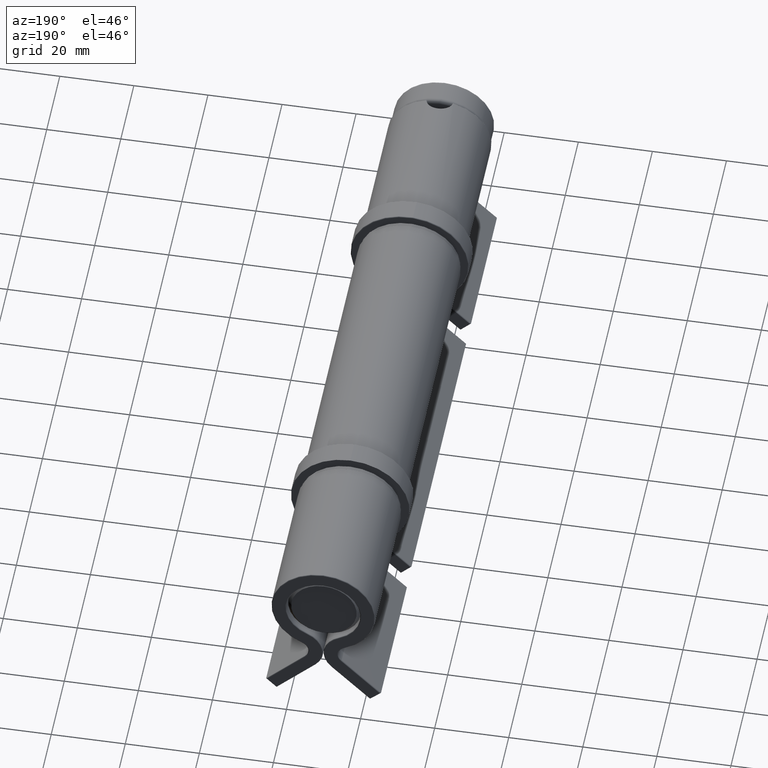
[diagram: clean part render]
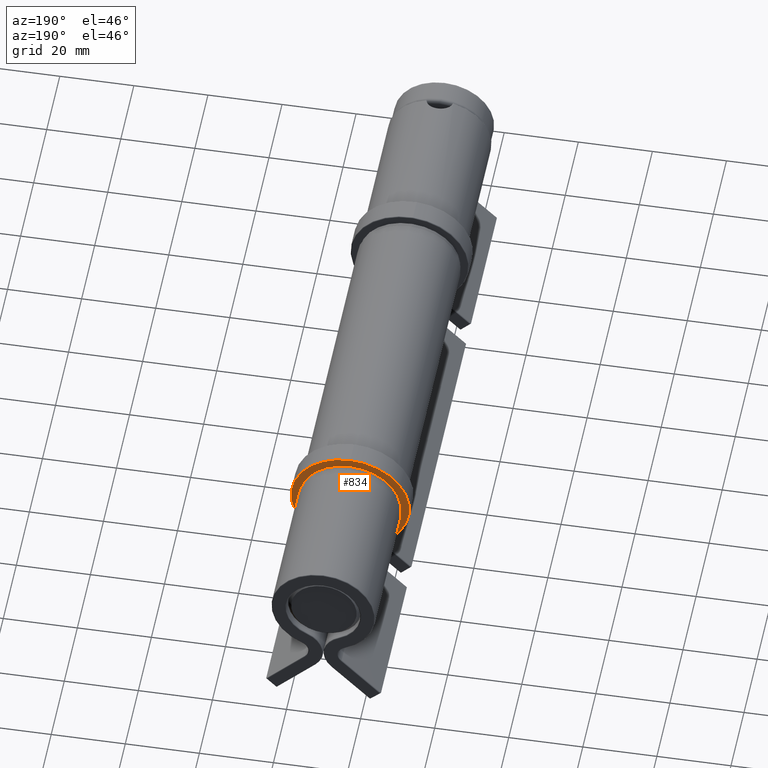
[diagram: same view with one face highlighted and labeled with its STEP entity id]
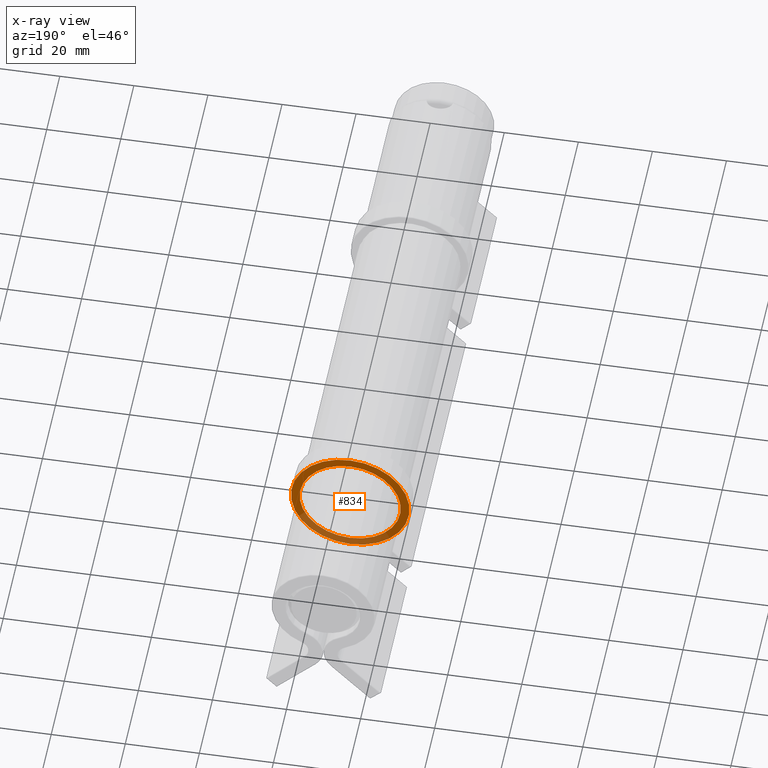
[diagram: x-ray of the same camera — body ghosted, the highlighted face saturated]
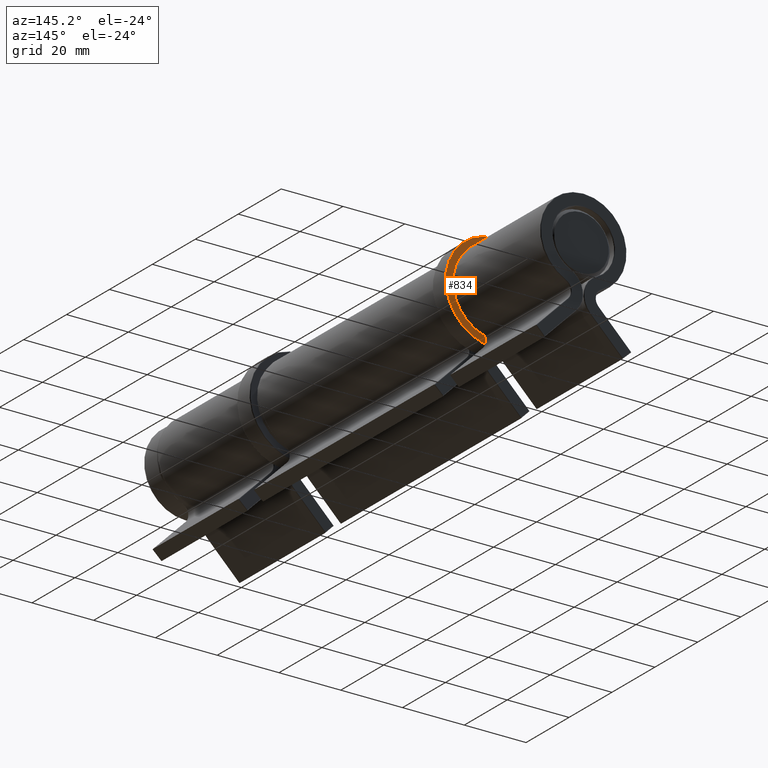
[diagram: same view with one face highlighted and labeled with its STEP entity id]
A machine part, auxiliary view. The second image highlights one B-rep face of the part: STEP entity #834.
The next image is the same camera in x-ray: the body ghosted, the highlighted face saturated — about 29% of this face is hidden behind the body in this view.
A second angle (auxiliary view) of the same face is appended — the face is thin or edge-on in the first view.
In plain terms, the highlighted planar face has unit normal (0, 1, 0).
Its self-contained STEP definition (entity closure, byte-faithful):
#53 = AXIS2_PLACEMENT_3D ( 'NONE', #4576, #2280, #4149 ) ;
#228 = ORIENTED_EDGE ( 'NONE', *, *, #2129, .F. ) ;
#466 = FACE_BOUND ( 'NONE', #3389, .T. ) ;
#824 = EDGE_LOOP ( 'NONE', ( #2715 ) ) ;
#834 = ADVANCED_FACE ( 'NONE', ( #4148, #466 ), #1637, .T. ) ;
#1032 = CARTESIAN_POINT ( 'NONE',  ( 0.000000000000000000, 5.999999999999998224, 0.000000000000000000 ) ) ;
#1033 = EDGE_CURVE ( 'NONE', #1437, #1437, #4356, .T. ) ;
#1395 = DIRECTION ( 'NONE',  ( 6.938893903907220674E-18, 0.000000000000000000, 1.000000000000000000 ) ) ;
#1437 = VERTEX_POINT ( 'NONE', #3980 ) ;
#1637 = PLANE ( 'NONE',  #4324 ) ;
#1761 = CIRCLE ( 'NONE', #53, 13.65000000000001634 ) ;
#2011 = DIRECTION ( 'NONE',  ( 6.938893903907220674E-18, 0.000000000000000000, 1.000000000000000000 ) ) ;
#2059 = DIRECTION ( 'NONE',  ( 0.000000000000000000, 1.000000000000000000, 0.000000000000000000 ) ) ;
#2129 = EDGE_CURVE ( 'NONE', #3331, #3331, #1761, .T. ) ;
#2280 = DIRECTION ( 'NONE',  ( 0.000000000000000000, 1.000000000000000000, 0.000000000000000000 ) ) ;
#2403 = DIRECTION ( 'NONE',  ( -0.000000000000000000, 1.000000000000000000, 0.000000000000000000 ) ) ;
#2715 = ORIENTED_EDGE ( 'NONE', *, *, #1033, .T. ) ;
#3062 = CARTESIAN_POINT ( 'NONE',  ( 0.000000000000000000, 5.999999999999998224, 0.000000000000000000 ) ) ;
#3288 = CARTESIAN_POINT ( 'NONE',  ( 9.471590178833366982E-17, 5.999999999999998224, 13.65000000000001634 ) ) ;
#3331 = VERTEX_POINT ( 'NONE', #3288 ) ;
#3389 = EDGE_LOOP ( 'NONE', ( #228 ) ) ;
#3980 = CARTESIAN_POINT ( 'NONE',  ( 1.110223024625156540E-16, 5.999999999999998224, 16.00000000000001776 ) ) ;
#4148 = FACE_OUTER_BOUND ( 'NONE', #824, .T. ) ;
#4149 = DIRECTION ( 'NONE',  ( 6.938893903907219904E-18, 0.000000000000000000, 1.000000000000000000 ) ) ;
#4324 = AXIS2_PLACEMENT_3D ( 'NONE', #3062, #2403, #2011 ) ;
#4356 = CIRCLE ( 'NONE', #4489, 16.00000000000001776 ) ;
#4489 = AXIS2_PLACEMENT_3D ( 'NONE', #1032, #2059, #1395 ) ;
#4576 = CARTESIAN_POINT ( 'NONE',  ( 0.000000000000000000, 5.999999999999998224, 0.000000000000000000 ) ) ;